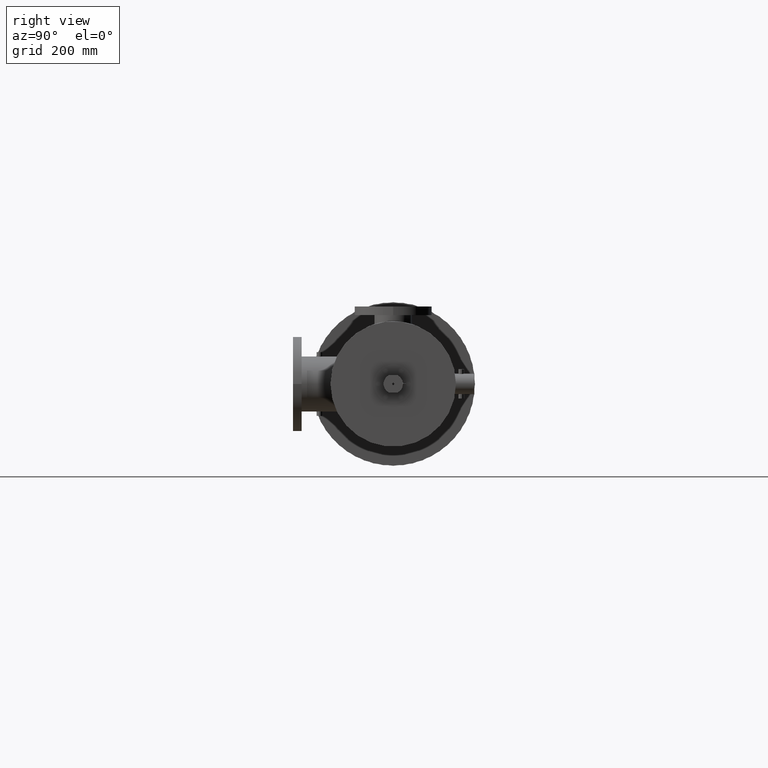
[diagram: clean part render]
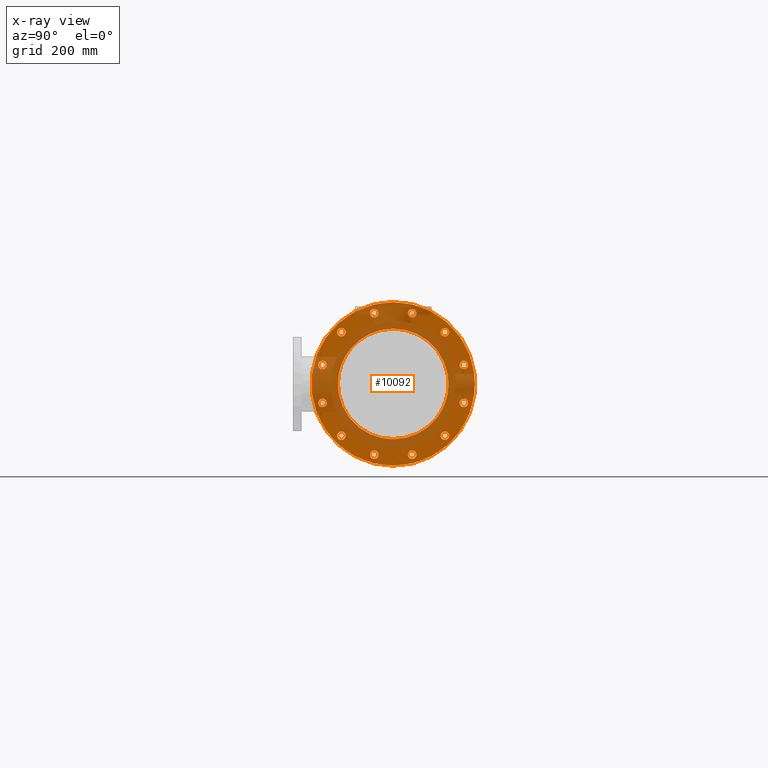
[diagram: x-ray — body ghosted, one internal face saturated and labeled with its STEP entity id]
A machine part, right view, then the same camera in x-ray: the body is ghosted and one INTERNAL B-rep face — a face not visible from any outside direction — is saturated and labeled: STEP entity #10092.
In plain terms, the highlighted planar face has unit normal (1, 0, 0).
Its self-contained STEP definition (entity closure, byte-faithful):
#72 = CARTESIAN_POINT ( 'NONE',  ( 2.000000000000000000, 8.210369523456757079, 1.699961883371546190 ) ) ;
#212 = EDGE_LOOP ( 'NONE', ( #16565, #23175 ) ) ;
#219 = AXIS2_PLACEMENT_3D ( 'NONE', #2617, #8038, #18876 ) ;
#272 = DIRECTION ( 'NONE',  ( 0.0000000000000000000, 0.0000000000000000000, -1.000000000000000000 ) ) ;
#294 = AXIS2_PLACEMENT_3D ( 'NONE', #7883, #6031, #11488 ) ;
#330 = CARTESIAN_POINT ( 'NONE',  ( 2.000000000000000000, 6.010407640085160708, 5.510407640085687397 ) ) ;
#397 = CARTESIAN_POINT ( 'NONE',  ( 2.000000000000000000, -2.199961883371335691, -8.210369523457448082 ) ) ;
#421 = CARTESIAN_POINT ( 'NONE',  ( 2.000000000000000000, 2.199961883370823656, 7.710369523456958696 ) ) ;
#629 = DIRECTION ( 'NONE',  ( 0.0000000000000000000, 0.0000000000000000000, -1.000000000000000000 ) ) ;
#650 = VERTEX_POINT ( 'NONE', #7806 ) ;
#729 = CARTESIAN_POINT ( 'NONE',  ( 2.000000000000000000, 6.010407640085160708, 6.010407640085686509 ) ) ;
#815 = EDGE_LOOP ( 'NONE', ( #16624, #11382 ) ) ;
#836 = VERTEX_POINT ( 'NONE', #2577 ) ;
#944 = FACE_BOUND ( 'NONE', #6091, .T. ) ;
#1019 = CARTESIAN_POINT ( 'NONE',  ( 2.000000000000000444, 0.002932151969987994034, 6.426184048635691148 ) ) ;
#1028 = ORIENTED_EDGE ( 'NONE', *, *, #20848, .T. ) ;
#1088 = CARTESIAN_POINT ( 'NONE',  ( 2.000000000000000000, -6.010407640085671410, -5.510407640086177672 ) ) ;
#1117 = CARTESIAN_POINT ( 'NONE',  ( 2.000000000000000444, -4.281190547120472978, -6.426184048635691148 ) ) ;
#1369 = ORIENTED_EDGE ( 'NONE', *, *, #22989, .T. ) ;
#1442 = CARTESIAN_POINT ( 'NONE',  ( 2.000000000000000000, 0.002932151969988812390, -9.497067848030042114 ) ) ;
#1478 = CARTESIAN_POINT ( 'NONE',  ( 2.000000000000000000, 8.210369523456757079, 2.699961883371545746 ) ) ;
#1479 = ORIENTED_EDGE ( 'NONE', *, *, #13226, .T. ) ;
#1571 = VERTEX_POINT ( 'NONE', #4250 ) ;
#1717 = DIRECTION ( 'NONE',  ( -1.000000000000000000, -0.0000000000000000000, -0.0000000000000000000 ) ) ;
#1765 = CIRCLE ( 'NONE', #5922, 0.4999999999999996114 ) ;
#1868 = EDGE_CURVE ( 'NONE', #7029, #12709, #16006, .T. ) ;
#2112 = VERTEX_POINT ( 'NONE', #1019 ) ;
#2159 = CARTESIAN_POINT ( 'NONE',  ( 2.000000000000000000, 0.002932151969987649258, 0.0000000000000000000 ) ) ;
#2164 = CARTESIAN_POINT ( 'NONE',  ( 2.000000000000000000, 8.210369523456948926, -2.199961883371323257 ) ) ;
#2272 = EDGE_CURVE ( 'NONE', #12709, #7029, #13770, .T. ) ;
#2283 = CARTESIAN_POINT ( 'NONE',  ( 2.000000000000000000, 6.429116200605678344, 0.0000000000000000000 ) ) ;
#2290 = DIRECTION ( 'NONE',  ( -1.000000000000000000, -0.0000000000000000000, -0.0000000000000000000 ) ) ;
#2480 = VERTEX_POINT ( 'NONE', #13361 ) ;
#2494 = EDGE_CURVE ( 'NONE', #11704, #5709, #1765, .T. ) ;
#2528 = DIRECTION ( 'NONE',  ( 0.0000000000000000000, 0.0000000000000000000, -1.000000000000000000 ) ) ;
#2559 = CIRCLE ( 'NONE', #5012, 0.4999999999999996114 ) ;
#2560 = CIRCLE ( 'NONE', #2632, 0.4999999999999996114 ) ;
#2563 = DIRECTION ( 'NONE',  ( 0.0000000000000000000, 0.0000000000000000000, -1.000000000000000000 ) ) ;
#2577 = CARTESIAN_POINT ( 'NONE',  ( 2.000000000000000000, 2.199961883371528870, -7.710369523457261565 ) ) ;
#2617 = CARTESIAN_POINT ( 'NONE',  ( 2.000000000000000000, -2.199961883372043125, 8.210369523456767737 ) ) ;
#2632 = AXIS2_PLACEMENT_3D ( 'NONE', #14841, #18246, #11195 ) ;
#2773 = CARTESIAN_POINT ( 'NONE',  ( 2.000000000000000000, -2.199961883372043125, 8.210369523456767737 ) ) ;
#2850 = EDGE_CURVE ( 'NONE', #7404, #2112, #22473, .T. ) ;
#2923 = DIRECTION ( 'NONE',  ( -1.000000000000000000, -0.0000000000000000000, -0.0000000000000000000 ) ) ;
#3073 = CIRCLE ( 'NONE', #219, 0.4999999999999996114 ) ;
#3081 = CARTESIAN_POINT ( 'NONE',  ( 2.000000000000000444, 0.002932151969987994034, 6.426184048635691148 ) ) ;
#3174 = ORIENTED_EDGE ( 'NONE', *, *, #12043, .T. ) ;
#3208 = ORIENTED_EDGE ( 'NONE', *, *, #2850, .F. ) ;
#3247 = DIRECTION ( 'NONE',  ( -1.000000000000000000, -0.0000000000000000000, -0.0000000000000000000 ) ) ;
#3279 = CIRCLE ( 'NONE', #13209, 0.4999999999999996114 ) ;
#3344 = CARTESIAN_POINT ( 'NONE',  ( 2.000000000000000000, 0.002932151969987649258, 9.497067848030042114 ) ) ;
#3445 = DIRECTION ( 'NONE',  ( 0.0000000000000000000, 0.0000000000000000000, -1.000000000000000000 ) ) ;
#3558 = EDGE_CURVE ( 'NONE', #13049, #10690, #6751, .T. ) ;
#3660 = CIRCLE ( 'NONE', #9205, 0.4999999999999996114 ) ;
#3710 = EDGE_CURVE ( 'NONE', #22453, #22061, #8119, .T. ) ;
#3730 = ORIENTED_EDGE ( 'NONE', *, *, #4553, .T. ) ;
#3785 = CARTESIAN_POINT ( 'NONE',  ( 2.000000000000000000, 6.010407640085160708, 6.010407640085686509 ) ) ;
#3911 = CARTESIAN_POINT ( 'NONE',  ( 2.000000000000000000, -6.010407640086187442, 6.010407640085171366 ) ) ;
#4035 = CARTESIAN_POINT ( 'NONE',  ( 2.000000000000000000, 6.010407640085676739, -5.510407640085663417 ) ) ;
#4168 = EDGE_CURVE ( 'NONE', #9949, #7940, #3660, .T. ) ;
#4250 = CARTESIAN_POINT ( 'NONE',  ( 2.000000000000000000, 6.010407640085160708, 6.510407640085686509 ) ) ;
#4553 = EDGE_CURVE ( 'NONE', #10811, #19704, #19909, .T. ) ;
#4555 = VERTEX_POINT ( 'NONE', #421 ) ;
#4580 = FACE_BOUND ( 'NONE', #6037, .T. ) ;
#4656 = CARTESIAN_POINT ( 'NONE',  ( 2.000000000000000000, -2.199961883371335691, -7.710369523457448082 ) ) ;
#4661 = DIRECTION ( 'NONE',  ( -1.000000000000000000, -0.0000000000000000000, -0.0000000000000000000 ) ) ;
#4702 = VERTEX_POINT ( 'NONE', #22347 ) ;
#4752 = EDGE_CURVE ( 'NONE', #2112, #7404, #18660, .T. ) ;
#4813 = DIRECTION ( 'NONE',  ( -1.000000000000000000, -0.0000000000000000000, -0.0000000000000000000 ) ) ;
#4841 = EDGE_CURVE ( 'NONE', #5366, #7699, #10343, .T. ) ;
#5012 = AXIS2_PLACEMENT_3D ( 'NONE', #5383, #21473, #10767 ) ;
#5366 = VERTEX_POINT ( 'NONE', #14405 ) ;
#5383 = CARTESIAN_POINT ( 'NONE',  ( 2.000000000000000000, 6.010407640085676739, -6.010407640085662528 ) ) ;
#5473 = CARTESIAN_POINT ( 'NONE',  ( 2.000000000000000444, 0.002932151969987994034, 6.426184048635691148 ) ) ;
#5479 = DIRECTION ( 'NONE',  ( -1.000000000000000000, -0.0000000000000000000, -0.0000000000000000000 ) ) ;
#5583 = DIRECTION ( 'NONE',  ( -1.000000000000000000, -0.0000000000000000000, -0.0000000000000000000 ) ) ;
#5621 = DIRECTION ( 'NONE',  ( -1.000000000000000000, -0.0000000000000000000, -0.0000000000000000000 ) ) ;
#5626 = EDGE_CURVE ( 'NONE', #7940, #9949, #22620, .T. ) ;
#5658 = DIRECTION ( 'NONE',  ( 0.0000000000000000000, 0.0000000000000000000, -1.000000000000000000 ) ) ;
#5660 = ORIENTED_EDGE ( 'NONE', *, *, #2494, .T. ) ;
#5689 = FACE_BOUND ( 'NONE', #12075, .T. ) ;
#5709 = VERTEX_POINT ( 'NONE', #11018 ) ;
#5839 = DIRECTION ( 'NONE',  ( 0.0000000000000000000, 0.0000000000000000000, -1.000000000000000000 ) ) ;
#5916 = CARTESIAN_POINT ( 'NONE',  ( 2.000000000000000000, -8.210369523457456964, 2.199961883370834315 ) ) ;
#5922 = AXIS2_PLACEMENT_3D ( 'NONE', #2773, #6356, #6434 ) ;
#5967 = VERTEX_POINT ( 'NONE', #18707 ) ;
#5992 = FACE_BOUND ( 'NONE', #19915, .T. ) ;
#6031 = DIRECTION ( 'NONE',  ( -1.000000000000000000, -0.0000000000000000000, -0.0000000000000000000 ) ) ;
#6037 = EDGE_LOOP ( 'NONE', ( #9889, #8619 ) ) ;
#6091 = EDGE_LOOP ( 'NONE', ( #15425, #6672 ) ) ;
#6356 = DIRECTION ( 'NONE',  ( -1.000000000000000000, -0.0000000000000000000, -0.0000000000000000000 ) ) ;
#6413 = ORIENTED_EDGE ( 'NONE', *, *, #2272, .T. ) ;
#6434 = DIRECTION ( 'NONE',  ( 0.0000000000000000000, 0.0000000000000000000, -1.000000000000000000 ) ) ;
#6534 = EDGE_LOOP ( 'NONE', ( #6413, #21565 ) ) ;
#6546 = FACE_BOUND ( 'NONE', #17730, .T. ) ;
#6644 = CARTESIAN_POINT ( 'NONE',  ( 2.000000000000000000, 0.002932151969987649258, 0.0000000000000000000 ) ) ;
#6672 = ORIENTED_EDGE ( 'NONE', *, *, #12749, .T. ) ;
#6751 = CIRCLE ( 'NONE', #18673, 0.5000000000000001110 ) ;
#6992 = AXIS2_PLACEMENT_3D ( 'NONE', #8601, #3247, #22963 ) ;
#7029 = VERTEX_POINT ( 'NONE', #72 ) ;
#7250 = DIRECTION ( 'NONE',  ( 0.0000000000000000000, 0.0000000000000000000, -1.000000000000000000 ) ) ;
#7254 = CARTESIAN_POINT ( 'NONE',  ( 2.000000000000000000, -2.199961883371335691, -8.710369523457448082 ) ) ;
#7278 = DIRECTION ( 'NONE',  ( -1.000000000000000000, -0.0000000000000000000, -0.0000000000000000000 ) ) ;
#7404 = VERTEX_POINT ( 'NONE', #11687 ) ;
#7578 = CIRCLE ( 'NONE', #18237, 0.4999999999999996114 ) ;
#7643 = EDGE_LOOP ( 'NONE', ( #17579, #7910 ) ) ;
#7692 = CARTESIAN_POINT ( 'NONE',  ( 2.000000000000000000, -2.199961883372043125, 8.710369523456767737 ) ) ;
#7699 = VERTEX_POINT ( 'NONE', #4035 ) ;
#7762 = CARTESIAN_POINT ( 'NONE',  ( 2.000000000000000000, 0.002932151969987649258, 0.0000000000000000000 ) ) ;
#7806 = CARTESIAN_POINT ( 'NONE',  ( 2.000000000000000000, 2.199961883370823656, 8.710369523456957808 ) ) ;
#7883 = CARTESIAN_POINT ( 'NONE',  ( 2.000000000000000000, 2.199961883371528870, -8.210369523457261565 ) ) ;
#7910 = ORIENTED_EDGE ( 'NONE', *, *, #14860, .T. ) ;
#7914 = CARTESIAN_POINT ( 'NONE',  ( 2.000000000000000000, -8.210369523457456964, 1.699961883370834315 ) ) ;
#7933 = DIRECTION ( 'NONE',  ( -1.000000000000000000, -0.0000000000000000000, -0.0000000000000000000 ) ) ;
#7940 = VERTEX_POINT ( 'NONE', #4656 ) ;
#8038 = DIRECTION ( 'NONE',  ( -1.000000000000000000, -0.0000000000000000000, -0.0000000000000000000 ) ) ;
#8119 = CIRCLE ( 'NONE', #12186, 0.5000000000000001110 ) ;
#8270 = EDGE_CURVE ( 'NONE', #12852, #12160, #12192, .T. ) ;
#8402 = EDGE_LOOP ( 'NONE', ( #11584, #17569 ) ) ;
#8601 = CARTESIAN_POINT ( 'NONE',  ( 2.000000000000000000, -2.199961883371335691, -8.210369523457448082 ) ) ;
#8619 = ORIENTED_EDGE ( 'NONE', *, *, #19220, .T. ) ;
#8657 = PLANE ( 'NONE',  #11265 ) ;
#8668 = DIRECTION ( 'NONE',  ( 0.0000000000000000000, 0.0000000000000000000, -1.000000000000000000 ) ) ;
#8884 = CIRCLE ( 'NONE', #19143, 0.4999999999999996114 ) ;
#8932 = EDGE_LOOP ( 'NONE', ( #1028, #22233 ) ) ;
#9041 = DIRECTION ( 'NONE',  ( 0.0000000000000000000, 0.0000000000000000000, -1.000000000000000000 ) ) ;
#9116 = CARTESIAN_POINT ( 'NONE',  ( 2.000000000000000000, 6.429116200605677456, -3.213092024317844686 ) ) ;
#9167 = CIRCLE ( 'NONE', #12045, 0.4999999999999996114 ) ;
#9195 = CARTESIAN_POINT ( 'NONE',  ( 2.000000000000000000, 8.210369523456757079, 2.199961883371546190 ) ) ;
#9205 = AXIS2_PLACEMENT_3D ( 'NONE', #397, #2290, #10691 ) ;
#9290 = VERTEX_POINT ( 'NONE', #1088 ) ;
#9305 = ORIENTED_EDGE ( 'NONE', *, *, #11877, .T. ) ;
#9357 = DIRECTION ( 'NONE',  ( 0.0000000000000000000, 0.0000000000000000000, -1.000000000000000000 ) ) ;
#9607 = CARTESIAN_POINT ( 'NONE',  ( 2.000000000000000000, -6.010407640086187442, 6.510407640085170478 ) ) ;
#9864 = FACE_BOUND ( 'NONE', #8402, .T. ) ;
#9889 = ORIENTED_EDGE ( 'NONE', *, *, #22210, .T. ) ;
#9949 = VERTEX_POINT ( 'NONE', #7254 ) ;
#10092 = ADVANCED_FACE ( 'NONE', ( #10421, #19147, #11292, #4580, #5992, #21614, #11561, #5689, #944, #14623, #22995, #9864, #18286, #6546 ), #8657, .T. ) ;
#10154 = CARTESIAN_POINT ( 'NONE',  ( 2.000000000000000444, -4.281190547120472090, 6.426184048635691148 ) ) ;
#10343 = CIRCLE ( 'NONE', #21195, 0.4999999999999996114 ) ;
#10382 = CARTESIAN_POINT ( 'NONE',  ( 2.000000000000000000, 6.010407640085676739, -6.010407640085662528 ) ) ;
#10421 = FACE_BOUND ( 'NONE', #8932, .T. ) ;
#10690 = VERTEX_POINT ( 'NONE', #11585 ) ;
#10691 = DIRECTION ( 'NONE',  ( 0.0000000000000000000, 0.0000000000000000000, -1.000000000000000000 ) ) ;
#10767 = DIRECTION ( 'NONE',  ( 0.0000000000000000000, 0.0000000000000000000, -1.000000000000000000 ) ) ;
#10779 = CIRCLE ( 'NONE', #14027, 0.5000000000000001110 ) ;
#10811 = VERTEX_POINT ( 'NONE', #1442 ) ;
#11018 = CARTESIAN_POINT ( 'NONE',  ( 2.000000000000000000, -2.199961883372043125, 7.710369523456768626 ) ) ;
#11096 = DIRECTION ( 'NONE',  ( -1.000000000000000000, -0.0000000000000000000, -0.0000000000000000000 ) ) ;
#11152 = VERTEX_POINT ( 'NONE', #330 ) ;
#11163 = CARTESIAN_POINT ( 'NONE',  ( 2.000000000000000444, 4.287054851060447369, -6.426184048635691148 ) ) ;
#11195 = DIRECTION ( 'NONE',  ( 0.0000000000000000000, 0.0000000000000000000, -1.000000000000000000 ) ) ;
#11199 = CARTESIAN_POINT ( 'NONE',  ( 2.000000000000000000, 2.199961883371528870, -8.210369523457261565 ) ) ;
#11265 = AXIS2_PLACEMENT_3D ( 'NONE', #6644, #19166, #14032 ) ;
#11292 = FACE_BOUND ( 'NONE', #212, .T. ) ;
#11382 = ORIENTED_EDGE ( 'NONE', *, *, #3558, .T. ) ;
#11488 = DIRECTION ( 'NONE',  ( 0.0000000000000000000, 0.0000000000000000000, -1.000000000000000000 ) ) ;
#11561 = FACE_BOUND ( 'NONE', #12936, .T. ) ;
#11584 = ORIENTED_EDGE ( 'NONE', *, *, #3710, .T. ) ;
#11585 = CARTESIAN_POINT ( 'NONE',  ( 2.000000000000000000, -8.210369523457456964, 2.699961883370834315 ) ) ;
#11687 = CARTESIAN_POINT ( 'NONE',  ( 2.000000000000000444, 0.002932151969987174377, -6.426184048635691148 ) ) ;
#11704 = VERTEX_POINT ( 'NONE', #7692 ) ;
#11726 = CARTESIAN_POINT ( 'NONE',  ( 2.000000000000000000, -6.423251896665703065, 3.213092024317845574 ) ) ;
#11877 = EDGE_CURVE ( 'NONE', #5967, #22575, #2560, .T. ) ;
#11881 = CARTESIAN_POINT ( 'NONE',  ( 2.000000000000000000, -6.423251896665703065, 7.869805725893477824E-16 ) ) ;
#11885 = CARTESIAN_POINT ( 'NONE',  ( 2.000000000000000000, -8.210369523457268670, -2.199961883372033355 ) ) ;
#12043 = EDGE_CURVE ( 'NONE', #5709, #11704, #3073, .T. ) ;
#12045 = AXIS2_PLACEMENT_3D ( 'NONE', #3911, #5621, #9041 ) ;
#12074 = DIRECTION ( 'NONE',  ( -1.000000000000000000, -0.0000000000000000000, -0.0000000000000000000 ) ) ;
#12075 = EDGE_LOOP ( 'NONE', ( #5660, #3174 ) ) ;
#12126 = DIRECTION ( 'NONE',  ( 0.0000000000000000000, 0.0000000000000000000, -1.000000000000000000 ) ) ;
#12160 = VERTEX_POINT ( 'NONE', #20807 ) ;
#12186 = AXIS2_PLACEMENT_3D ( 'NONE', #21502, #23140, #21418 ) ;
#12192 = CIRCLE ( 'NONE', #18279, 0.4999999999999867328 ) ;
#12209 = AXIS2_PLACEMENT_3D ( 'NONE', #15315, #4661, #13847 ) ;
#12346 = EDGE_CURVE ( 'NONE', #22575, #5967, #9167, .T. ) ;
#12511 = ORIENTED_EDGE ( 'NONE', *, *, #12985, .T. ) ;
#12512 = CARTESIAN_POINT ( 'NONE',  ( 2.000000000000000000, 8.210369523456948926, -1.699961883371323257 ) ) ;
#12709 = VERTEX_POINT ( 'NONE', #1478 ) ;
#12738 = DIRECTION ( 'NONE',  ( 1.000000000000000000, 0.0000000000000000000, 0.0000000000000000000 ) ) ;
#12749 = EDGE_CURVE ( 'NONE', #4555, #650, #8884, .T. ) ;
#12769 = AXIS2_PLACEMENT_3D ( 'NONE', #14349, #1717, #3445 ) ;
#12852 = VERTEX_POINT ( 'NONE', #19219 ) ;
#12936 = EDGE_LOOP ( 'NONE', ( #19269, #9305 ) ) ;
#12955 = CIRCLE ( 'NONE', #15149, 0.4999999999999996114 ) ;
#12985 = EDGE_CURVE ( 'NONE', #19704, #10811, #23150, .T. ) ;
#13049 = VERTEX_POINT ( 'NONE', #7914 ) ;
#13133 = DIRECTION ( 'NONE',  ( 0.0000000000000000000, 0.0000000000000000000, -1.000000000000000000 ) ) ;
#13195 = DIRECTION ( 'NONE',  ( -1.000000000000000000, -0.0000000000000000000, -0.0000000000000000000 ) ) ;
#13209 = AXIS2_PLACEMENT_3D ( 'NONE', #16259, #5583, #5658 ) ;
#13226 = EDGE_CURVE ( 'NONE', #12160, #12852, #16702, .T. ) ;
#13232 = ORIENTED_EDGE ( 'NONE', *, *, #8270, .T. ) ;
#13361 = CARTESIAN_POINT ( 'NONE',  ( 2.000000000000000000, 2.199961883371528870, -8.710369523457259788 ) ) ;
#13577 = CIRCLE ( 'NONE', #12209, 0.4999999999999996114 ) ;
#13586 = CARTESIAN_POINT ( 'NONE',  ( 2.000000000000000444, 0.002932151969987174377, -6.426184048635691148 ) ) ;
#13770 = CIRCLE ( 'NONE', #12769, 0.4999999999999998335 ) ;
#13847 = DIRECTION ( 'NONE',  ( 0.0000000000000000000, 0.0000000000000000000, -1.000000000000000000 ) ) ;
#14027 = AXIS2_PLACEMENT_3D ( 'NONE', #15464, #4813, #12126 ) ;
#14032 = DIRECTION ( 'NONE',  ( 0.0000000000000000000, 0.0000000000000000000, -1.000000000000000000 ) ) ;
#14318 = AXIS2_PLACEMENT_3D ( 'NONE', #7762, #16682, #2563 ) ;
#14349 = CARTESIAN_POINT ( 'NONE',  ( 2.000000000000000000, 8.210369523456757079, 2.199961883371546190 ) ) ;
#14405 = CARTESIAN_POINT ( 'NONE',  ( 2.000000000000000000, 6.010407640085676739, -6.510407640085662528 ) ) ;
#14605 = EDGE_CURVE ( 'NONE', #10690, #13049, #10779, .T. ) ;
#14623 = FACE_BOUND ( 'NONE', #17307, .T. ) ;
#14666 = CIRCLE ( 'NONE', #16021, 0.5000000000000001110 ) ;
#14841 = CARTESIAN_POINT ( 'NONE',  ( 2.000000000000000000, -6.010407640086187442, 6.010407640085171366 ) ) ;
#14860 = EDGE_CURVE ( 'NONE', #2480, #836, #18912, .T. ) ;
#15149 = AXIS2_PLACEMENT_3D ( 'NONE', #3785, #18247, #18165 ) ;
#15315 = CARTESIAN_POINT ( 'NONE',  ( 2.000000000000000000, -6.010407640085671410, -6.010407640086177672 ) ) ;
#15425 = ORIENTED_EDGE ( 'NONE', *, *, #16491, .T. ) ;
#15439 = EDGE_CURVE ( 'NONE', #836, #2480, #16301, .T. ) ;
#15464 = CARTESIAN_POINT ( 'NONE',  ( 2.000000000000000000, -8.210369523457456964, 2.199961883370834315 ) ) ;
#15483 = DIRECTION ( 'NONE',  ( 0.0000000000000000000, 0.0000000000000000000, -1.000000000000000000 ) ) ;
#15818 = DIRECTION ( 'NONE',  ( -1.000000000000000000, -0.0000000000000000000, -0.0000000000000000000 ) ) ;
#16006 = CIRCLE ( 'NONE', #18179, 0.4999999999999998335 ) ;
#16021 = AXIS2_PLACEMENT_3D ( 'NONE', #2164, #7278, #272 ) ;
#16259 = CARTESIAN_POINT ( 'NONE',  ( 2.000000000000000000, -6.010407640085671410, -6.010407640086177672 ) ) ;
#16301 = CIRCLE ( 'NONE', #294, 0.4999999999999996114 ) ;
#16306 = CARTESIAN_POINT ( 'NONE',  ( 2.000000000000000000, 6.429116200605677456, 3.213092024317844686 ) ) ;
#16457 = AXIS2_PLACEMENT_3D ( 'NONE', #21785, #11096, #9357 ) ;
#16491 = EDGE_CURVE ( 'NONE', #650, #4555, #22981, .T. ) ;
#16565 = ORIENTED_EDGE ( 'NONE', *, *, #5626, .T. ) ;
#16577 = DIRECTION ( 'NONE',  ( 0.0000000000000000000, 0.0000000000000000000, -1.000000000000000000 ) ) ;
#16624 = ORIENTED_EDGE ( 'NONE', *, *, #14605, .T. ) ;
#16658 = DIRECTION ( 'NONE',  ( -1.000000000000000000, -0.0000000000000000000, -0.0000000000000000000 ) ) ;
#16682 = DIRECTION ( 'NONE',  ( 1.000000000000000000, 0.0000000000000000000, 0.0000000000000000000 ) ) ;
#16702 = CIRCLE ( 'NONE', #17044, 0.4999999999999867328 ) ;
#16784 = CARTESIAN_POINT ( 'NONE',  ( 2.000000000000000000, -8.210369523457268670, -2.199961883372033355 ) ) ;
#17044 = AXIS2_PLACEMENT_3D ( 'NONE', #16784, #7933, #629 ) ;
#17209 = DIRECTION ( 'NONE',  ( 0.0000000000000000000, 0.0000000000000000000, -1.000000000000000000 ) ) ;
#17307 = EDGE_LOOP ( 'NONE', ( #20963, #1369 ) ) ;
#17569 = ORIENTED_EDGE ( 'NONE', *, *, #19257, .T. ) ;
#17579 = ORIENTED_EDGE ( 'NONE', *, *, #15439, .T. ) ;
#17730 = EDGE_LOOP ( 'NONE', ( #19096, #3208 ) ) ;
#18165 = DIRECTION ( 'NONE',  ( 0.0000000000000000000, 0.0000000000000000000, -1.000000000000000000 ) ) ;
#18179 = AXIS2_PLACEMENT_3D ( 'NONE', #9195, #5479, #7250 ) ;
#18237 = AXIS2_PLACEMENT_3D ( 'NONE', #729, #13195, #2528 ) ;
#18246 = DIRECTION ( 'NONE',  ( -1.000000000000000000, -0.0000000000000000000, -0.0000000000000000000 ) ) ;
#18247 = DIRECTION ( 'NONE',  ( -1.000000000000000000, -0.0000000000000000000, -0.0000000000000000000 ) ) ;
#18279 = AXIS2_PLACEMENT_3D ( 'NONE', #11885, #2923, #17209 ) ;
#18286 = FACE_OUTER_BOUND ( 'NONE', #21891, .T. ) ;
#18351 = DIRECTION ( 'NONE',  ( -1.000000000000000000, -0.0000000000000000000, -0.0000000000000000000 ) ) ;
#18660 =( BOUNDED_CURVE ( )  B_SPLINE_CURVE ( 3, ( #3081, #10154, #11726, #11881, #22647, #1117, #13586 ),
 .UNSPECIFIED., .F., .T. ) 
 B_SPLINE_CURVE_WITH_KNOTS ( ( 4, 3, 4 ),
 ( 0.2500000000000000000, 0.5000000000000000000, 0.7500000000000000000 ),
 .UNSPECIFIED. ) 
 CURVE ( )  GEOMETRIC_REPRESENTATION_ITEM ( )  RATIONAL_B_SPLINE_CURVE ( ( 0.5000000000000000000, 0.5000000000000000000, 0.6666666666666667407, 1.000000000000000000, 0.6666666666666667407, 0.5000000000000000000, 0.5000000000000000000 ) ) 
 REPRESENTATION_ITEM ( '' )  );
#18673 = AXIS2_PLACEMENT_3D ( 'NONE', #5916, #18351, #5839 ) ;
#18707 = CARTESIAN_POINT ( 'NONE',  ( 2.000000000000000000, -6.010407640086187442, 5.510407640085171366 ) ) ;
#18774 = CARTESIAN_POINT ( 'NONE',  ( 2.000000000000000000, 8.210369523456948926, -2.699961883371323701 ) ) ;
#18876 = DIRECTION ( 'NONE',  ( 0.0000000000000000000, 0.0000000000000000000, -1.000000000000000000 ) ) ;
#18912 = CIRCLE ( 'NONE', #20230, 0.4999999999999996114 ) ;
#19073 = CARTESIAN_POINT ( 'NONE',  ( 2.000000000000000000, 2.199961883370823656, 8.210369523456957808 ) ) ;
#19096 = ORIENTED_EDGE ( 'NONE', *, *, #4752, .F. ) ;
#19143 = AXIS2_PLACEMENT_3D ( 'NONE', #19073, #12074, #15483 ) ;
#19147 = FACE_BOUND ( 'NONE', #7643, .T. ) ;
#19166 = DIRECTION ( 'NONE',  ( 1.000000000000000000, 0.0000000000000000000, 0.0000000000000000000 ) ) ;
#19219 = CARTESIAN_POINT ( 'NONE',  ( 2.000000000000000000, -8.210369523457268670, -1.699961883372046678 ) ) ;
#19220 = EDGE_CURVE ( 'NONE', #4702, #9290, #3279, .T. ) ;
#19257 = EDGE_CURVE ( 'NONE', #22061, #22453, #14666, .T. ) ;
#19269 = ORIENTED_EDGE ( 'NONE', *, *, #12346, .T. ) ;
#19704 = VERTEX_POINT ( 'NONE', #3344 ) ;
#19877 = CARTESIAN_POINT ( 'NONE',  ( 2.000000000000000444, 0.002932151969987174377, -6.426184048635691148 ) ) ;
#19907 = EDGE_CURVE ( 'NONE', #1571, #11152, #12955, .T. ) ;
#19909 = CIRCLE ( 'NONE', #21633, 9.497067848030042114 ) ;
#19915 = EDGE_LOOP ( 'NONE', ( #13232, #1479 ) ) ;
#20230 = AXIS2_PLACEMENT_3D ( 'NONE', #11199, #16658, #13133 ) ;
#20807 = CARTESIAN_POINT ( 'NONE',  ( 2.000000000000000000, -8.210369523457268670, -2.699961883372020033 ) ) ;
#20848 = EDGE_CURVE ( 'NONE', #7699, #5366, #2559, .T. ) ;
#20963 = ORIENTED_EDGE ( 'NONE', *, *, #19907, .T. ) ;
#21195 = AXIS2_PLACEMENT_3D ( 'NONE', #10382, #15818, #8668 ) ;
#21418 = DIRECTION ( 'NONE',  ( 0.0000000000000000000, 0.0000000000000000000, -1.000000000000000000 ) ) ;
#21473 = DIRECTION ( 'NONE',  ( -1.000000000000000000, -0.0000000000000000000, -0.0000000000000000000 ) ) ;
#21502 = CARTESIAN_POINT ( 'NONE',  ( 2.000000000000000000, 8.210369523456948926, -2.199961883371323257 ) ) ;
#21565 = ORIENTED_EDGE ( 'NONE', *, *, #1868, .T. ) ;
#21614 = FACE_BOUND ( 'NONE', #815, .T. ) ;
#21633 = AXIS2_PLACEMENT_3D ( 'NONE', #2159, #12738, #16577 ) ;
#21699 = CARTESIAN_POINT ( 'NONE',  ( 2.000000000000000444, 4.287054851060448257, 6.426184048635691148 ) ) ;
#21785 = CARTESIAN_POINT ( 'NONE',  ( 2.000000000000000000, 2.199961883370823656, 8.210369523456957808 ) ) ;
#21891 = EDGE_LOOP ( 'NONE', ( #12511, #3730 ) ) ;
#22061 = VERTEX_POINT ( 'NONE', #18774 ) ;
#22210 = EDGE_CURVE ( 'NONE', #9290, #4702, #13577, .T. ) ;
#22233 = ORIENTED_EDGE ( 'NONE', *, *, #4841, .T. ) ;
#22347 = CARTESIAN_POINT ( 'NONE',  ( 2.000000000000000000, -6.010407640085671410, -6.510407640086176784 ) ) ;
#22453 = VERTEX_POINT ( 'NONE', #12512 ) ;
#22473 =( BOUNDED_CURVE ( )  B_SPLINE_CURVE ( 3, ( #19877, #11163, #9116, #2283, #16306, #21699, #5473 ),
 .UNSPECIFIED., .F., .F. ) 
 B_SPLINE_CURVE_WITH_KNOTS ( ( 4, 3, 4 ),
 ( 0.7500000000000000000, 1.000000000000000000, 1.250000000000000000 ),
 .UNSPECIFIED. ) 
 CURVE ( )  GEOMETRIC_REPRESENTATION_ITEM ( )  RATIONAL_B_SPLINE_CURVE ( ( 0.5000000000000000000, 0.5000000000000000000, 0.6666666666666667407, 1.000000000000000000, 0.6666666666666667407, 0.5000000000000000000, 0.5000000000000000000 ) ) 
 REPRESENTATION_ITEM ( '' )  );
#22575 = VERTEX_POINT ( 'NONE', #9607 ) ;
#22620 = CIRCLE ( 'NONE', #6992, 0.4999999999999996114 ) ;
#22647 = CARTESIAN_POINT ( 'NONE',  ( 2.000000000000000000, -6.423251896665703065, -3.213092024317844242 ) ) ;
#22963 = DIRECTION ( 'NONE',  ( 0.0000000000000000000, 0.0000000000000000000, -1.000000000000000000 ) ) ;
#22981 = CIRCLE ( 'NONE', #16457, 0.4999999999999996114 ) ;
#22989 = EDGE_CURVE ( 'NONE', #11152, #1571, #7578, .T. ) ;
#22995 = FACE_BOUND ( 'NONE', #6534, .T. ) ;
#23140 = DIRECTION ( 'NONE',  ( -1.000000000000000000, -0.0000000000000000000, -0.0000000000000000000 ) ) ;
#23150 = CIRCLE ( 'NONE', #14318, 9.497067848030042114 ) ;
#23175 = ORIENTED_EDGE ( 'NONE', *, *, #4168, .T. ) ;